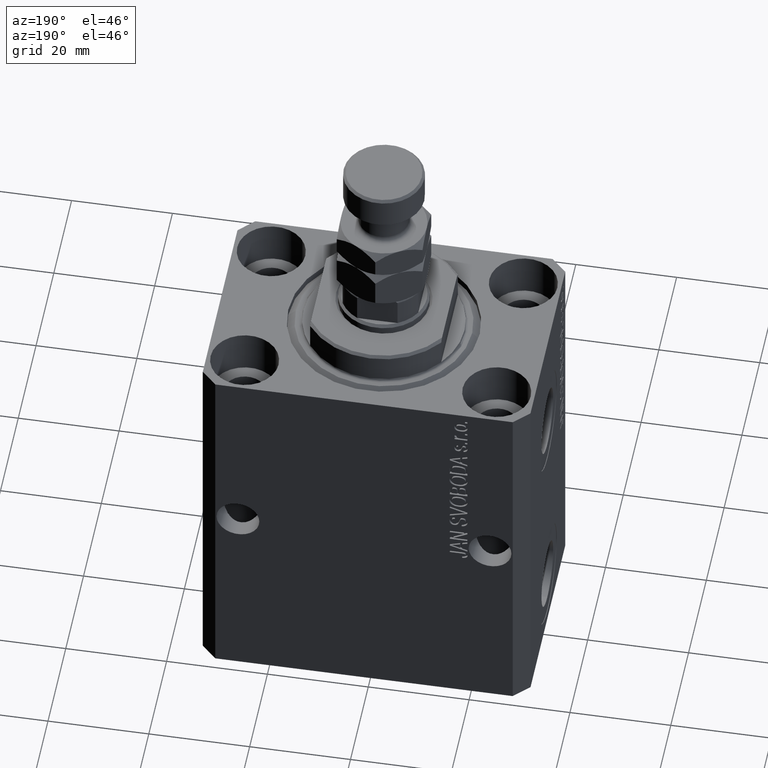
[diagram: clean part render]
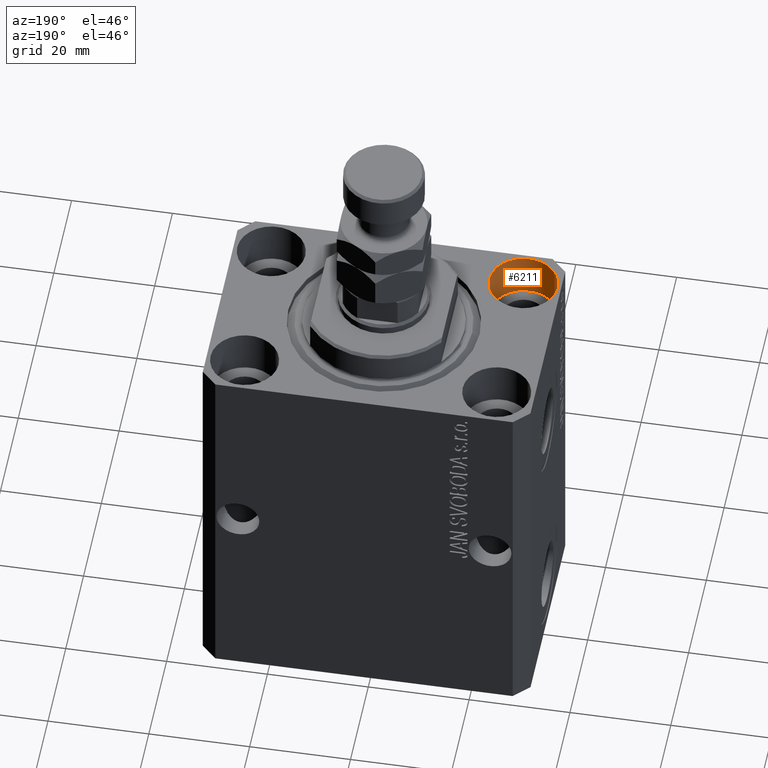
[diagram: same view with one face highlighted and labeled with its STEP entity id]
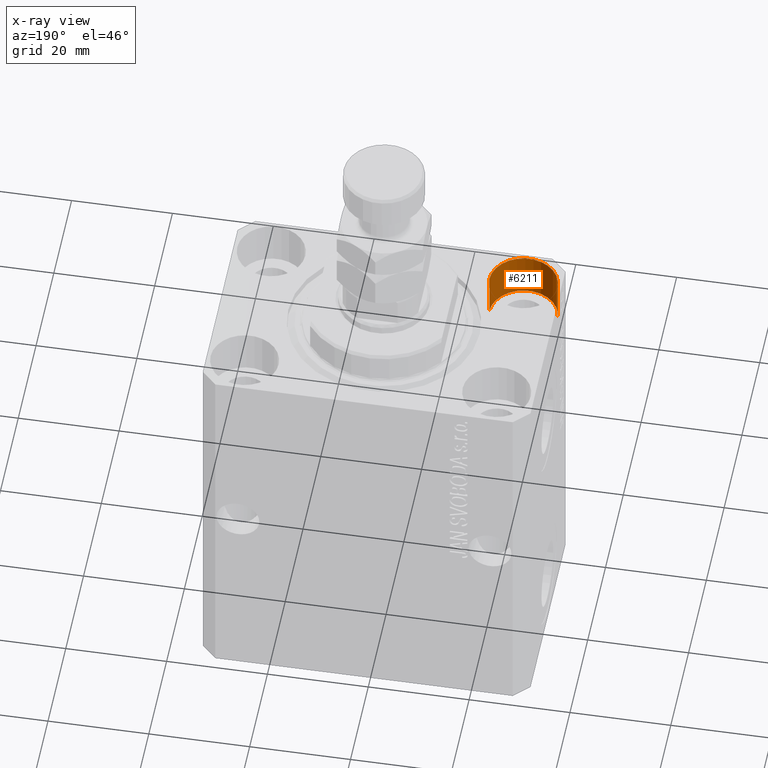
[diagram: x-ray of the same camera — body ghosted, the highlighted face saturated]
A machine part, auxiliary view. The second image highlights one B-rep face of the part: STEP entity #6211.
The next image is the same camera in x-ray: the body ghosted, the highlighted face saturated — about 0% of this face is hidden behind the body in this view.
In plain terms, the highlighted cylindrical surface (edge-blend (fillet) strip) has radius 6.75 mm, axis along (0, 0, 1).
Its self-contained STEP definition (entity closure, byte-faithful):
#141 = EDGE_CURVE ( 'NONE', #43283, #43973, #2587, .T. ) ;
#1629 = VERTEX_POINT ( 'NONE', #45074 ) ;
#2048 = DIRECTION ( 'NONE',  ( -0.000000000000000000, -0.000000000000000000, 1.000000000000000000 ) ) ;
#2587 = LINE ( 'NONE', #16597, #15079 ) ;
#3633 = EDGE_CURVE ( 'NONE', #43283, #1629, #4013, .T. ) ;
#4013 = CIRCLE ( 'NONE', #27066, 6.750000000041541881 ) ;
#5851 = EDGE_LOOP ( 'NONE', ( #6545, #45413, #9186, #44933 ) ) ;
#6211 = ADVANCED_FACE ( 'NONE', ( #32182 ), #11005, .F. ) ;
#6513 = DIRECTION ( 'NONE',  ( 0.000000000000000000, 0.000000000000000000, 1.000000000000000000 ) ) ;
#6545 = ORIENTED_EDGE ( 'NONE', *, *, #3633, .F. ) ;
#6803 = DIRECTION ( 'NONE',  ( 1.000000000000000000, 0.000000000000000000, 0.000000000000000000 ) ) ;
#7507 = CARTESIAN_POINT ( 'NONE',  ( -25.00000000000000355, -15.00000000000000000, -9.000000000000000000 ) ) ;
#7721 = EDGE_CURVE ( 'NONE', #43973, #26090, #44996, .T. ) ;
#8607 = CARTESIAN_POINT ( 'NONE',  ( -18.24999999995846167, -15.00000000000000000, -9.000000000000000000 ) ) ;
#9186 = ORIENTED_EDGE ( 'NONE', *, *, #7721, .T. ) ;
#10297 = DIRECTION ( 'NONE',  ( 1.000000000000000000, 0.000000000000000000, 0.000000000000000000 ) ) ;
#11005 = CYLINDRICAL_SURFACE ( 'NONE', #30125, 6.750000000041541881 ) ;
#14909 = EDGE_CURVE ( 'NONE', #1629, #26090, #30936, .T. ) ;
#15079 = VECTOR ( 'NONE', #38443, 1000.000000000000000 ) ;
#16597 = CARTESIAN_POINT ( 'NONE',  ( -31.75000000004154899, -15.00000000000000000, -9.000000000000000000 ) ) ;
#18822 = VECTOR ( 'NONE', #2048, 1000.000000000000000 ) ;
#20986 = CARTESIAN_POINT ( 'NONE',  ( -31.75000000004154899, -15.00000000000000000, -9.000000000000000000 ) ) ;
#21254 = CARTESIAN_POINT ( 'NONE',  ( -25.00000000000000355, -15.00000000000000000, 0.000000000000000000 ) ) ;
#21728 = DIRECTION ( 'NONE',  ( -0.000000000000000000, -0.000000000000000000, 1.000000000000000000 ) ) ;
#24940 = AXIS2_PLACEMENT_3D ( 'NONE', #21254, #28238, #10297 ) ;
#26090 = VERTEX_POINT ( 'NONE', #30863 ) ;
#27066 = AXIS2_PLACEMENT_3D ( 'NONE', #35610, #6513, #28179 ) ;
#28179 = DIRECTION ( 'NONE',  ( 1.000000000000000000, 0.000000000000000000, 0.000000000000000000 ) ) ;
#28238 = DIRECTION ( 'NONE',  ( 0.000000000000000000, 0.000000000000000000, 1.000000000000000000 ) ) ;
#30125 = AXIS2_PLACEMENT_3D ( 'NONE', #7507, #21728, #6803 ) ;
#30863 = CARTESIAN_POINT ( 'NONE',  ( -18.24999999995846167, -15.00000000000000000, 0.000000000000000000 ) ) ;
#30936 = LINE ( 'NONE', #8607, #18822 ) ;
#32182 = FACE_OUTER_BOUND ( 'NONE', #5851, .T. ) ;
#34835 = CARTESIAN_POINT ( 'NONE',  ( -31.75000000004154899, -15.00000000000000000, 0.000000000000000000 ) ) ;
#35610 = CARTESIAN_POINT ( 'NONE',  ( -25.00000000000000355, -15.00000000000000000, -9.000000000000000000 ) ) ;
#38443 = DIRECTION ( 'NONE',  ( -0.000000000000000000, -0.000000000000000000, 1.000000000000000000 ) ) ;
#43283 = VERTEX_POINT ( 'NONE', #20986 ) ;
#43973 = VERTEX_POINT ( 'NONE', #34835 ) ;
#44933 = ORIENTED_EDGE ( 'NONE', *, *, #14909, .F. ) ;
#44996 = CIRCLE ( 'NONE', #24940, 6.750000000041541881 ) ;
#45074 = CARTESIAN_POINT ( 'NONE',  ( -18.24999999995846167, -15.00000000000000000, -9.000000000000000000 ) ) ;
#45413 = ORIENTED_EDGE ( 'NONE', *, *, #141, .T. ) ;